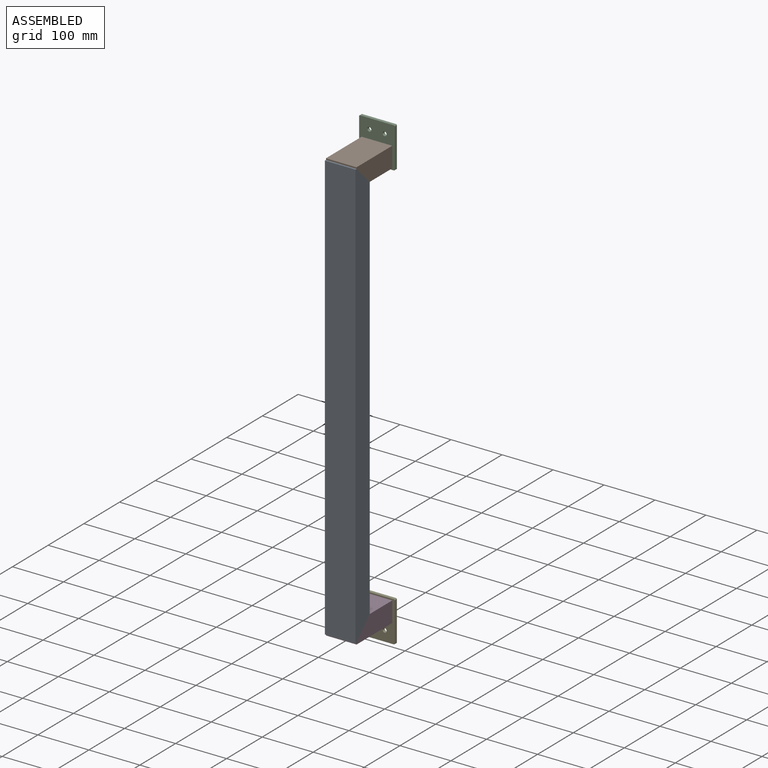
[diagram: assembled view]
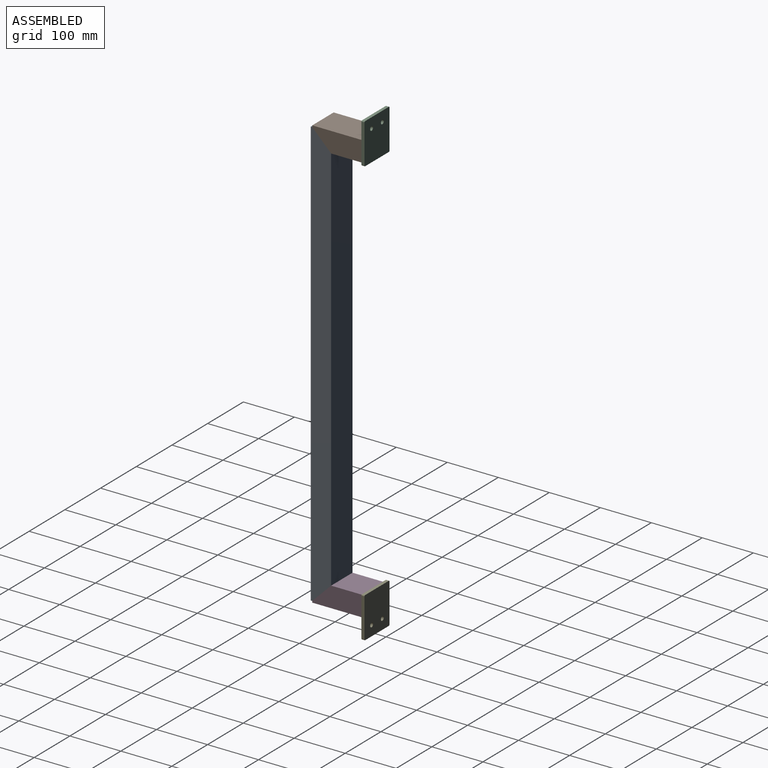
[diagram: assembled view, second angle]
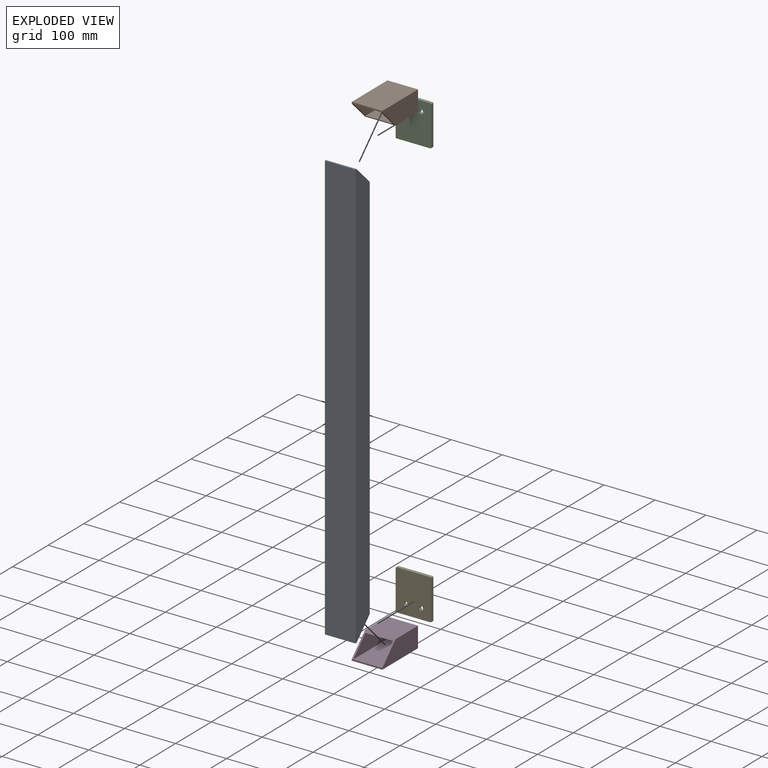
[diagram: exploded view]
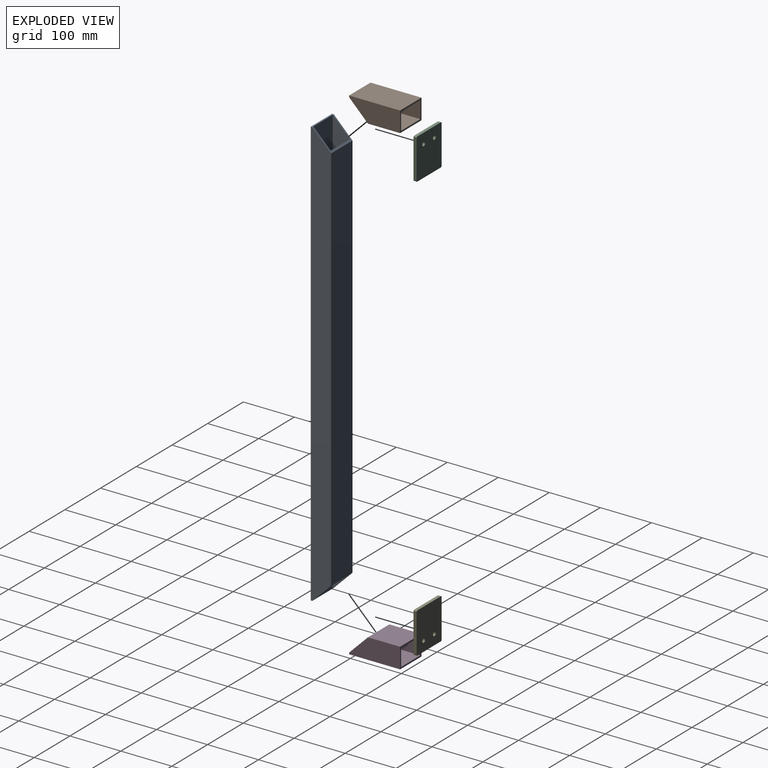
[diagram: exploded view, second angle]
ASSEMBLY  parts=5 mates=4
PART A: 12 faces, bbox 60x40x840 mm
  f0: plane 840x40mm, normal (1,0,0), area 32231mm2, adj f1,f7,f8,f9,f10,f11
  f1: plane 766x60mm, normal (0,1,0), area 45960mm2, adj f0,f2,f10,f11
  f2: plane 840x40mm, normal (-1,0,0), area 32231mm2, adj f1,f7,f8,f9,f10,f11
  f3: plane 840x34mm, normal (-1,0,0), area 27404mm2, adj f5,f6,f10,f11
  f4: plane 840x34mm, normal (1,0,0), area 27404mm2, adj f5,f6,f10,f11
  f5: plane 772x54mm, normal (0,-1,0), area 41688mm2, adj f3,f4,f10,f11
  f6: plane 840x54mm, normal (0,1,0), area 45360mm2, adj f3,f4,f8,f9
  f7: plane 840x60mm, normal (0,-1,0), area 50400mm2, adj f0,f2,f8,f9
  f8: plane 60x3mm, normal (0,0,1), area 180mm2, adj f0,f2,f6,f7,f11
  f9: plane 60x3mm, normal (0,0,-1), area 180mm2, adj f0,f2,f6,f7,f10
  f10: plane 60x37mm, normal (0,0.71,-0.71), area 543.1mm2, adj f0,f1,f2,f3,f4,f5,f9
  f11: plane 60x37mm, normal (0,0.71,0.71), area 543.1mm2, adj f0,f1,f2,f3,f4,f5,f8
PART B: 11 faces, bbox 60x100x40 mm
  f0: plane 66x54mm, normal (0,0,1), area 3564mm2, adj f1,f2,f4,f10
  f1: plane 100x34mm, normal (-1,0,0), area 2822mm2, adj f0,f4,f9,f10
  f2: plane 100x34mm, normal (1,0,0), area 2822mm2, adj f0,f4,f9,f10
  f3: plane 60x3mm, normal (0,-1,0), area 180mm2, adj f5,f6,f7,f9,f10
  f4: plane 60x40mm, normal (0,1,0), area 564mm2, adj f0,f1,f2,f5,f6,f7,f8,f9
  f5: plane 100x40mm, normal (1,0,0), area 3315.5mm2, adj f3,f4,f7,f8,f10
  f6: plane 100x40mm, normal (-1,0,0), area 3315.5mm2, adj f3,f4,f7,f8,f10
  f7: plane 100x60mm, normal (0,0,1), area 6000mm2, adj f3,f4,f5,f6
  f8: plane 63x60mm, normal (0,0,-1), area 3780mm2, adj f4,f5,f6,f10
  f9: plane 100x54mm, normal (0,0,-1), area 5400mm2, adj f1,f2,f3,f4
  f10: plane 60x37mm, normal (0,-0.71,-0.71), area 543.1mm2, adj f0,f1,f2,f3,f5,f6,f8
PART C: 12 faces, bbox 70x6x80 mm
  f0: plane 66x6mm, normal (0,0,-1), area 396mm2, adj f1,f9,f10,f11
  f1: cylinder r=2mm len=6mm, axis (0,1,0), area 18.8mm2, adj f0,f2,f10,f11
  f2: plane 76x6mm, normal (1,0,0), area 456mm2, adj f1,f3,f10,f11
  f3: cylinder r=2mm len=6mm, axis (0,1,0), area 18.8mm2, adj f2,f4,f10,f11
  f4: plane 66x6mm, normal (0,0,1), area 396mm2, adj f3,f5,f10,f11
  f5: cylinder r=2mm len=6mm, axis (0,1,0), area 18.8mm2, adj f4,f6,f10,f11
  f6: plane 76x6mm, normal (-1,0,0), area 456mm2, adj f5,f9,f10,f11
  f7: cylinder r=4mm len=8mm, axis (0,1,0), area 150.8mm2, adj f10,f11
  f8: cylinder r=4mm len=8mm, axis (0,1,0), area 150.8mm2, adj f10,f11
  f9: cylinder r=2mm len=6mm, axis (0,1,0), area 18.8mm2, adj f0,f6,f10,f11
  f10: plane 80x70mm, normal (0,-1,0), area 5496mm2, adj f0,f1,f2,f3,f4,f5,f6,f7
  f11: plane 80x70mm, normal (0,1,0), area 5496mm2, adj f0,f1,f2,f3,f4,f5,f6,f7
PART D: 11 faces, bbox 60x100x40 mm
  f0: plane 100x40mm, normal (1,0,0), area 3315.5mm2, adj f2,f6,f7,f8,f10
  f1: plane 100x40mm, normal (-1,0,0), area 3315.5mm2, adj f2,f6,f7,f8,f10
  f2: plane 63x60mm, normal (0,0,1), area 3780mm2, adj f0,f1,f7,f10
  f3: plane 100x34mm, normal (-1,0,0), area 2822mm2, adj f4,f7,f9,f10
  f4: plane 66x54mm, normal (0,0,-1), area 3564mm2, adj f3,f5,f7,f10
  f5: plane 100x34mm, normal (1,0,0), area 2822mm2, adj f4,f7,f9,f10
  f6: plane 60x3mm, normal (0,-1,0), area 180mm2, adj f0,f1,f8,f9,f10
  f7: plane 60x40mm, normal (0,1,0), area 564mm2, adj f0,f1,f2,f3,f4,f5,f8,f9
  f8: plane 100x60mm, normal (0,0,-1), area 6000mm2, adj f0,f1,f6,f7
  f9: plane 100x54mm, normal (0,0,1), area 5400mm2, adj f3,f5,f6,f7
  f10: plane 60x37mm, normal (0,-0.71,0.71), area 543.1mm2, adj f0,f1,f2,f3,f4,f5,f6
PART E: 12 faces, bbox 70x6x80 mm
  f0: plane 66x6mm, normal (0,0,-1), area 396mm2, adj f1,f9,f10,f11
  f1: cylinder r=2mm len=6mm, axis (0,1,0), area 18.8mm2, adj f0,f2,f10,f11
  f2: plane 76x6mm, normal (1,0,0), area 456mm2, adj f1,f3,f10,f11
  f3: cylinder r=2mm len=6mm, axis (0,1,0), area 18.8mm2, adj f2,f4,f10,f11
  f4: plane 66x6mm, normal (0,0,1), area 396mm2, adj f3,f5,f10,f11
  f5: cylinder r=2mm len=6mm, axis (0,1,0), area 18.8mm2, adj f4,f6,f10,f11
  f6: plane 76x6mm, normal (-1,0,0), area 456mm2, adj f5,f9,f10,f11
  f7: cylinder r=4mm len=8mm, axis (0,1,0), area 150.8mm2, adj f10,f11
  f8: cylinder r=4mm len=8mm, axis (0,1,0), area 150.8mm2, adj f10,f11
  f9: cylinder r=2mm len=6mm, axis (0,1,0), area 18.8mm2, adj f0,f6,f10,f11
  f10: plane 80x70mm, normal (0,-1,0), area 5496mm2, adj f0,f1,f2,f3,f4,f5,f6,f7
  f11: plane 80x70mm, normal (0,1,0), area 5496mm2, adj f0,f1,f2,f3,f4,f5,f6,f7
PLACE A t=(-164.76,188.01,-209.04)mm
PLACE B t=(-164.76,221.01,593.96)mm
PLACE C t=(-164.76,277.01,631.03)mm
PLACE D t=(-164.76,221.01,-212.04)mm
PLACE E t=(-164.76,277.01,-209.11)mm
MATE planar B.f10 <-> A.f11  axis (0,-0.71,-0.71) through (-164.76,208.01,593.96)mm
MATE planar D.f10 <-> A.f10  axis (0,-0.71,0.71) through (-164.76,208.01,-172.04)mm
MATE planar E.f10 <-> D.f7  axis (0,-1,0) through (-164.76,271.01,-169.11)mm
MATE planar C.f10 <-> B.f4  axis (0,-1,0) through (-164.76,271.01,591.03)mm
